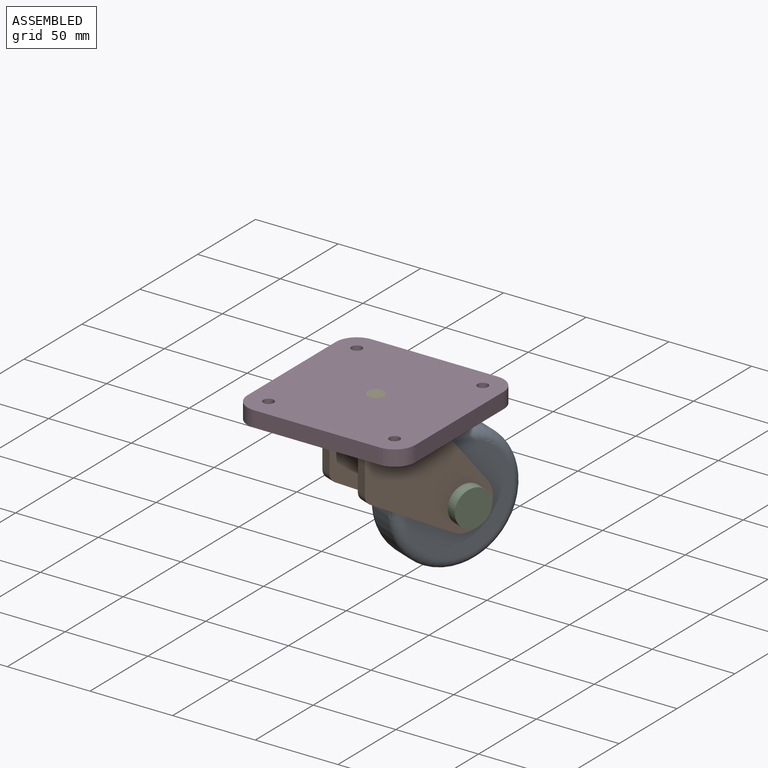
[diagram: assembled view]
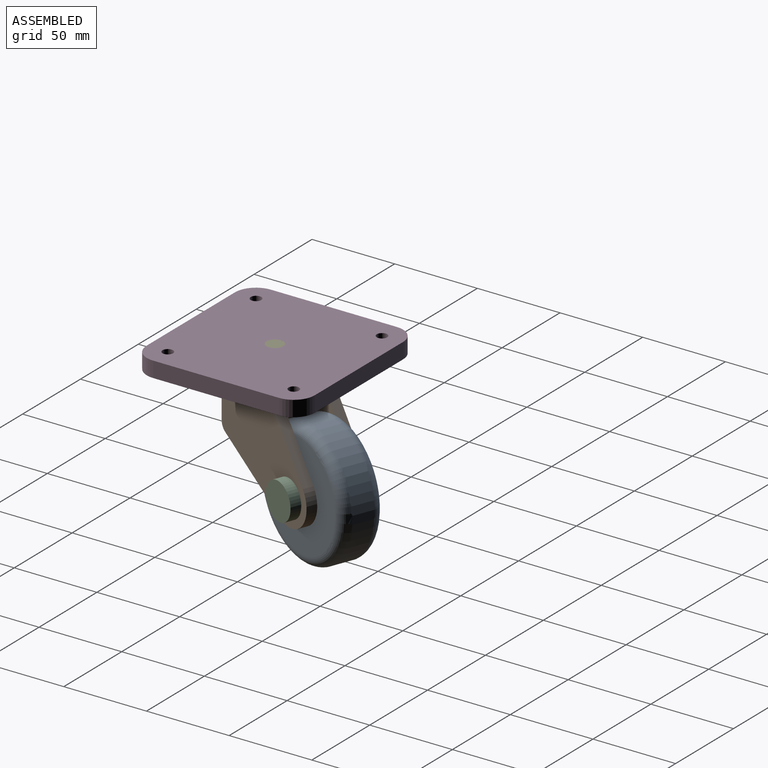
[diagram: assembled view, second angle]
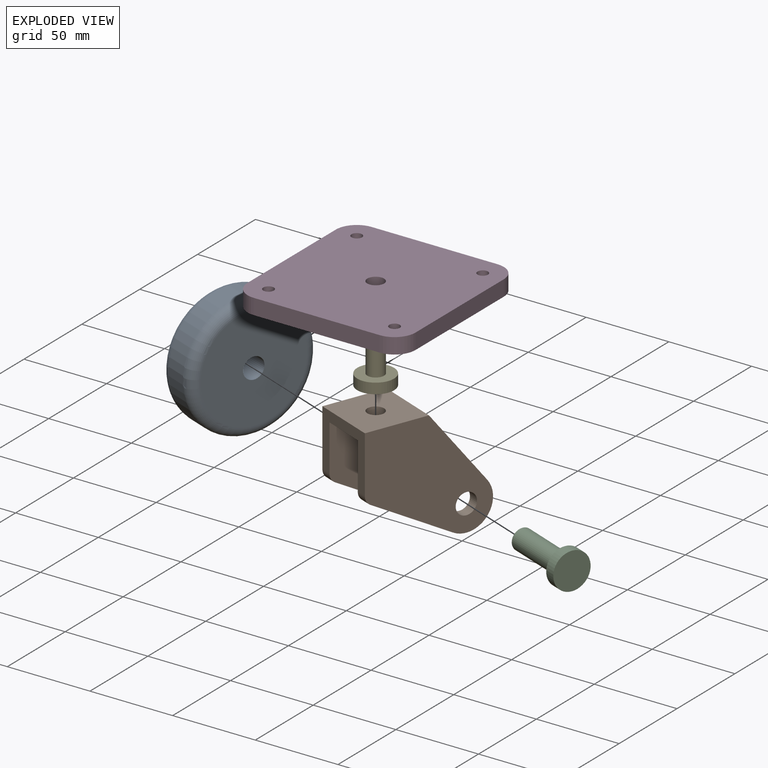
[diagram: exploded view]
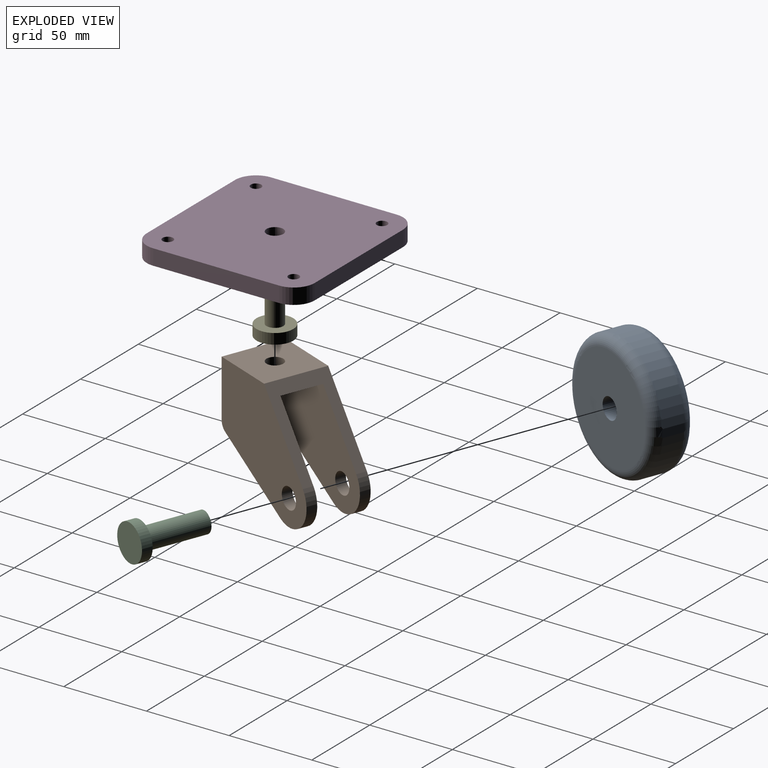
[diagram: exploded view, second angle]
ASSEMBLY  parts=5 mates=4
PART A: 6 faces, bbox 82.5x82.5x25.4 mm
  f0: cylinder r=38.1mm len=76.2mm, axis (0,0,-1), area 3040.2mm2, adj f4,f5
  f1: plane 63.5x63.5mm, normal (0,0,1), area 3040.2mm2, adj f3,f5
  f2: plane 63.5x63.5mm, normal (0,0,-1), area 3040.2mm2, adj f3,f4
  f3: cylinder r=6.35mm len=25.4mm, axis (0,0,1), area 1013.4mm2, adj f1,f2
  f4: torus R=31.75mm, axis (0,0,1), area 2243.2mm2, adj f0,f2
  f5: torus R=31.75mm, axis (0,0,1), area 2243.2mm2, adj f0,f1
PART B: 17 faces, bbox 76.2x69.9x38.1 mm
  f0: plane 76.2x69.85mm, normal (0,0,1), area 3319.9mm2, adj f4,f5,f8,f10,f11,f13,f14
  f1: plane 76.2x69.85mm, normal (0,0,-1), area 3319.9mm2, adj f4,f5,f7,f9,f11,f12,f15
  f2: plane 76.2x63.5mm, normal (0,0,-1), area 3062.1mm2, adj f5,f6,f8,f10,f11,f13,f14
  f3: plane 76.2x63.5mm, normal (0,0,1), area 3062.1mm2, adj f5,f6,f7,f9,f11,f12,f15
  f4: plane 38.1x38.1mm, normal (0,1,0), area 1370.5mm2, adj f0,f1,f5,f11,f16
  f5: plane 38.1x34.4mm, normal (-1,0,0), area 598.1mm2, adj f0,f1,f2,f3,f4,f6,f14,f15
  f6: plane 43.09x25.4mm, normal (0,-1,0), area 1013.4mm2, adj f2,f3,f5,f11,f16
  f7: cylinder r=6.35mm len=12.7mm, axis (0,0,1), area 253.4mm2, adj f1,f3
  f8: cylinder r=6.35mm len=12.7mm, axis (0,0,1), area 253.4mm2, adj f0,f2
  f9: cylinder r=15.88mm len=25.68mm, axis (0,0,1), area 277.4mm2, adj f1,f3,f11,f12
  f10: cylinder r=15.88mm len=25.68mm, axis (0,0,1), area 277.4mm2, adj f0,f2,f11,f13
  f11: plane 44.17x38.1mm, normal (0.79,0.62,0), area 918.5mm2, adj f0,f1,f2,f3,f4,f6,f9,f10
  f12: plane 49.29x27.87mm, normal (-0.49,-0.87,0), area 359.5mm2, adj f1,f3,f9,f15
  f13: plane 49.29x27.87mm, normal (-0.49,-0.87,0), area 359.5mm2, adj f0,f2,f10,f14
  f14: cylinder r=6.35mm len=6.35mm, axis (0,0,-1), area 42.6mm2, adj f0,f2,f5,f13
  f15: cylinder r=6.35mm len=6.35mm, axis (0,0,-1), area 42.6mm2, adj f1,f3,f5,f12
  f16: cylinder r=5.08mm len=10.16mm, axis (0,1,0), area 202.7mm2, adj f4,f6
PART C: 5 faces, bbox 22.2x44.5x22.2 mm
  f0: plane 22.23x22.23mm, normal (0,1,0), area 387.9mm2, adj f1
  f1: cylinder r=11.11mm len=22.23mm, axis (0,1,0), area 443.4mm2, adj f0,f3
  f2: cylinder r=6.35mm len=38.1mm, axis (0,-1,0), area 1520.1mm2, adj f3,f4
  f3: plane 22.23x22.23mm, normal (0,-1,0), area 261.3mm2, adj f1,f2
  f4: plane 12.7x12.7mm, normal (0,-1,0), area 126.7mm2, adj f2
PART D: 15 faces, bbox 101.6x101.6x9.5 mm
  f0: plane 76.2x9.53mm, normal (0,1,0), area 725.8mm2, adj f4,f5,f11,f14
  f1: plane 76.2x9.53mm, normal (-1,0,0), area 725.8mm2, adj f4,f5,f11,f12
  f2: plane 76.2x9.53mm, normal (0,-1,0), area 725.8mm2, adj f4,f5,f12,f13
  f3: plane 76.2x9.53mm, normal (1,0,0), area 725.8mm2, adj f4,f5,f13,f14
  f4: plane 101.6x101.6mm, normal (0,0,1), area 9976.4mm2, adj f0,f1,f2,f3,f6,f7,f8,f9
  f5: plane 101.6x101.6mm, normal (0,0,-1), area 9976.4mm2, adj f0,f1,f2,f3,f6,f7,f8,f9
  f6: cylinder r=3.17mm len=9.53mm, axis (0,0,1), area 190mm2, adj f4,f5
  f7: cylinder r=5.08mm len=10.16mm, axis (0,0,1), area 304mm2, adj f4,f5
  f8: cylinder r=3.17mm len=9.53mm, axis (0,0,1), area 190mm2, adj f4,f5
  f9: cylinder r=3.17mm len=9.53mm, axis (0,0,1), area 190mm2, adj f4,f5
  f10: cylinder r=3.17mm len=9.53mm, axis (0,0,1), area 190mm2, adj f4,f5
  f11: cylinder r=12.7mm len=12.7mm, axis (0,0,1), area 190mm2, adj f0,f1,f4,f5
  f12: cylinder r=12.7mm len=12.7mm, axis (0,0,-1), area 190mm2, adj f1,f2,f4,f5
  f13: cylinder r=12.7mm len=12.7mm, axis (0,0,1), area 190mm2, adj f2,f3,f4,f5
  f14: cylinder r=12.7mm len=12.7mm, axis (0,0,-1), area 190mm2, adj f0,f3,f4,f5
PART E: 5 faces, bbox 22.2x22.2x22.2 mm
  f0: plane 22.23x22.23mm, normal (0,1,0), area 387.9mm2, adj f1
  f1: cylinder r=11.11mm len=22.23mm, axis (0,1,0), area 443.4mm2, adj f0,f3
  f2: cylinder r=5.08mm len=15.88mm, axis (0,-1,0), area 506.7mm2, adj f3,f4
  f3: plane 22.23x22.23mm, normal (0,-1,0), area 306.9mm2, adj f1,f2
  f4: plane 10.16x10.16mm, normal (0,-1,0), area 81.1mm2, adj f2
PLACE A rot(axis=(0.34,-0.74,-0.58),121.1deg) t=(-28.83,17.39,-35.01)mm
PLACE B rot(axis=(0.72,0.49,0.49),108.5deg) t=(-67.84,4.94,-31.25)mm
PLACE C rot(axis=(0,0,-1),111.5deg) t=(-65.28,-8.03,-46.12)mm
PLACE D t=(-30.84,-20.57,18.97)mm fixed
PLACE E rot(axis=(0,-0.71,0.71),180deg) t=(-33.86,-5.26,-3.04)mm
MATE revolute A.f3 <-> B.f7  axis (0.93,-0.37,0) through (-28.83,17.39,-35.01)mm
MATE pin_slot E.f1 <-> B.f16  axis (0,0,1) through (-55.76,-16.37,12.62)mm
MATE revolute B.f16 <-> D.f7  axis (0,0,1) through (-55.76,-16.37,18.97)mm
MATE fastened C.f1 <-> B.f7  axis (-0.93,0.37,0) through (-22.92,15.06,-35.01)mm
